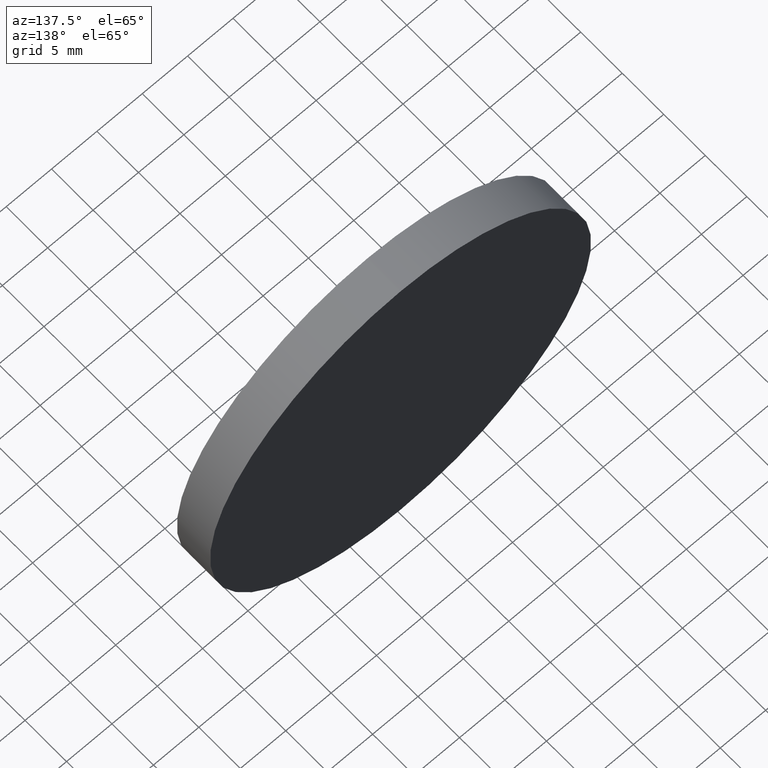
[diagram: clean part render]
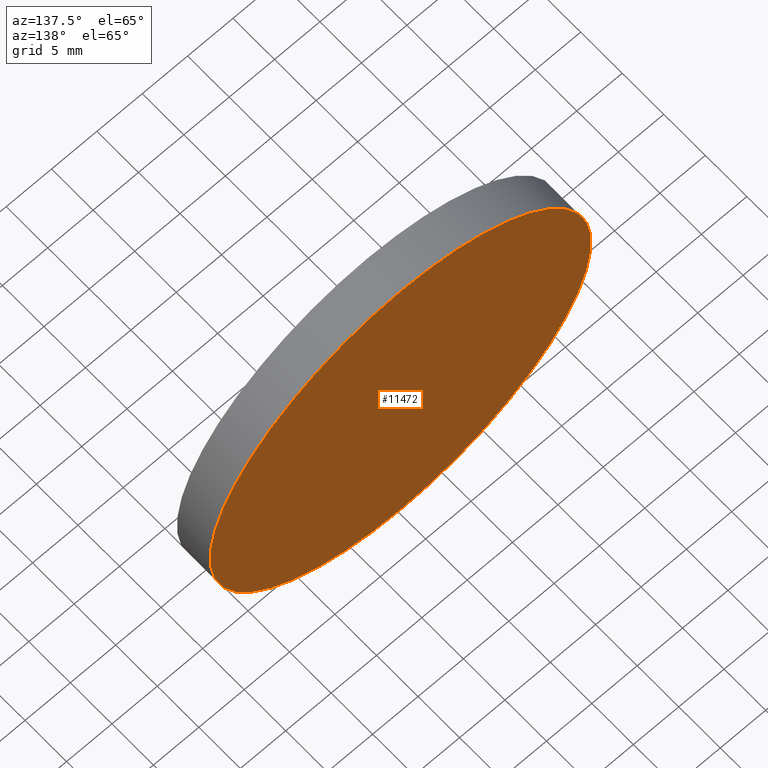
[diagram: same view with one face highlighted and labeled with its STEP entity id]
A machine part, auxiliary view. The second image highlights one B-rep face of the part: STEP entity #11472.
In plain terms, the highlighted planar face has unit normal (0, 1, 0).
Its self-contained STEP definition (entity closure, byte-faithful):
#43 = CARTESIAN_POINT ( 'NONE',  ( 0.000000000000000000, 2.000000000000000000, 0.000000000000000000 ) ) ;
#160 = DIRECTION ( 'NONE',  ( 0.000000000000000000, 0.000000000000000000, 1.000000000000000000 ) ) ;
#590 = CIRCLE ( 'NONE', #1925, 21.00000000000000000 ) ;
#869 = DIRECTION ( 'NONE',  ( 0.000000000000000000, 0.000000000000000000, 1.000000000000000000 ) ) ;
#914 = CARTESIAN_POINT ( 'NONE',  ( 0.000000000000000000, 2.000000000000000000, -21.00000000000000000 ) ) ;
#1095 = DIRECTION ( 'NONE',  ( 0.000000000000000000, 1.000000000000000000, 0.000000000000000000 ) ) ;
#1282 = ORIENTED_EDGE ( 'NONE', *, *, #1434, .T. ) ;
#1434 = EDGE_CURVE ( 'NONE', #10530, #9103, #8189, .T. ) ;
#1785 = ORIENTED_EDGE ( 'NONE', *, *, #7364, .T. ) ;
#1925 = AXIS2_PLACEMENT_3D ( 'NONE', #10852, #7354, #160 ) ;
#1982 = CARTESIAN_POINT ( 'NONE',  ( 0.000000000000000000, 2.000000000000000000, 0.000000000000000000 ) ) ;
#3536 = FACE_OUTER_BOUND ( 'NONE', #10038, .T. ) ;
#4498 = DIRECTION ( 'NONE',  ( 0.000000000000000000, 1.000000000000000000, 0.000000000000000000 ) ) ;
#4654 = DIRECTION ( 'NONE',  ( 0.000000000000000000, -0.000000000000000000, 1.000000000000000000 ) ) ;
#7354 = DIRECTION ( 'NONE',  ( 0.000000000000000000, 1.000000000000000000, 0.000000000000000000 ) ) ;
#7364 = EDGE_CURVE ( 'NONE', #9103, #10530, #590, .T. ) ;
#7605 = AXIS2_PLACEMENT_3D ( 'NONE', #1982, #4498, #869 ) ;
#8189 = CIRCLE ( 'NONE', #7605, 21.00000000000000000 ) ;
#8337 = CARTESIAN_POINT ( 'NONE',  ( 2.571758278209441661E-15, 2.000000000000000000, 21.00000000000000000 ) ) ;
#9103 = VERTEX_POINT ( 'NONE', #914 ) ;
#9237 = AXIS2_PLACEMENT_3D ( 'NONE', #43, #1095, #4654 ) ;
#10009 = PLANE ( 'NONE',  #9237 ) ;
#10038 = EDGE_LOOP ( 'NONE', ( #1785, #1282 ) ) ;
#10530 = VERTEX_POINT ( 'NONE', #8337 ) ;
#10852 = CARTESIAN_POINT ( 'NONE',  ( 0.000000000000000000, 2.000000000000000000, 0.000000000000000000 ) ) ;
#11472 = ADVANCED_FACE ( 'NONE', ( #3536 ), #10009, .T. ) ;